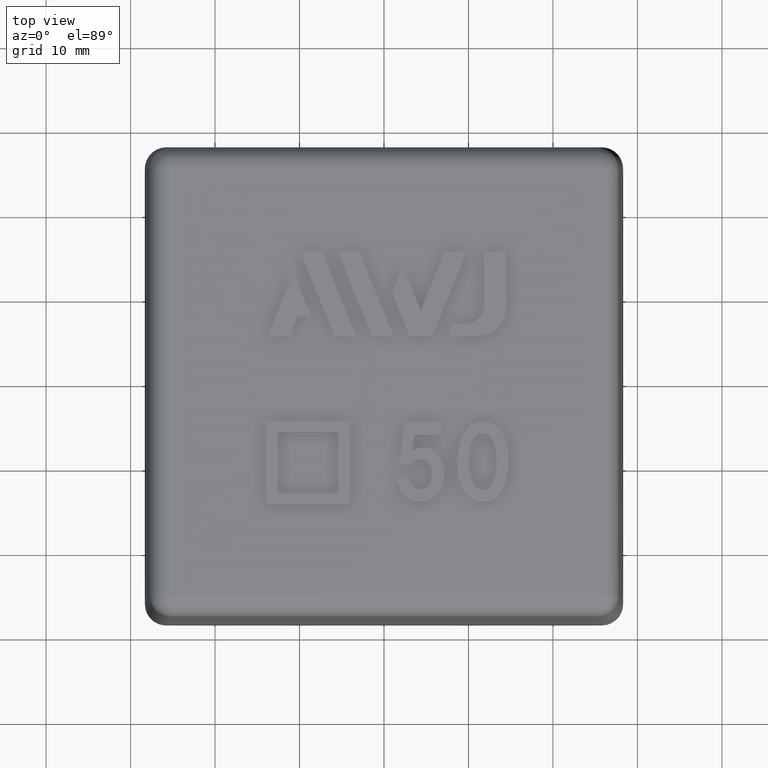
[diagram: clean part render]
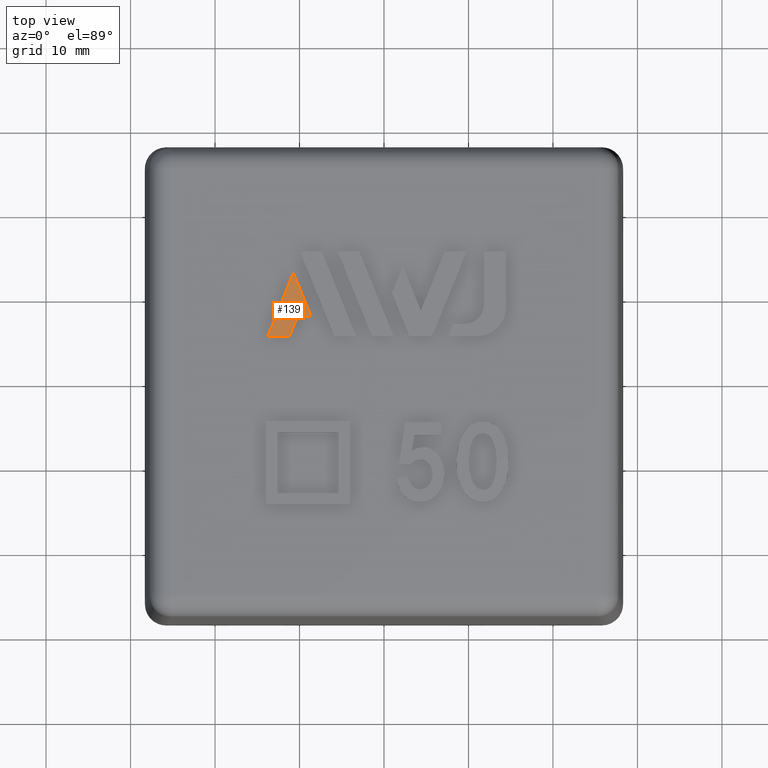
[diagram: same view with one face highlighted and labeled with its STEP entity id]
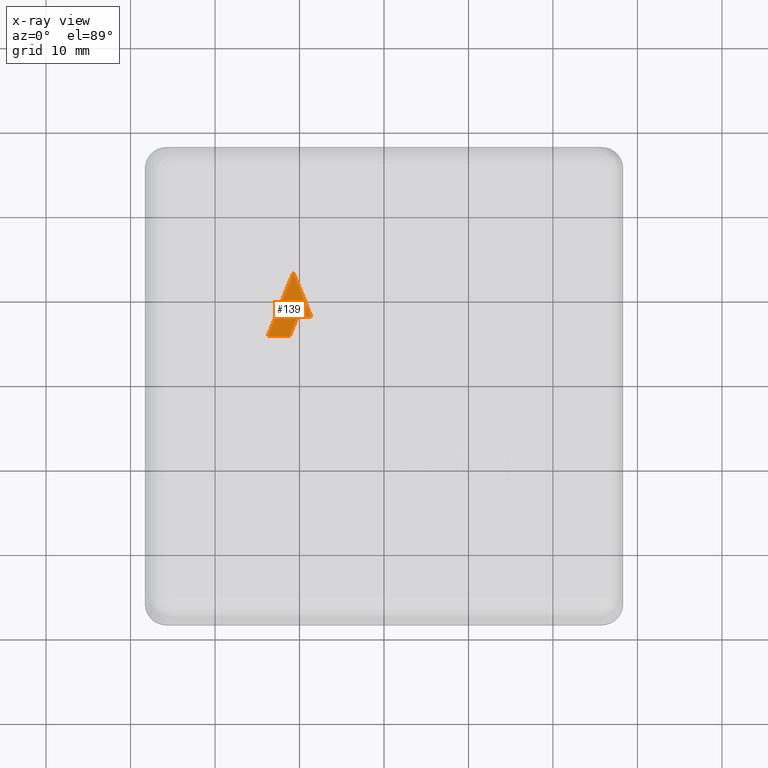
[diagram: x-ray of the same camera — body ghosted, the highlighted face saturated]
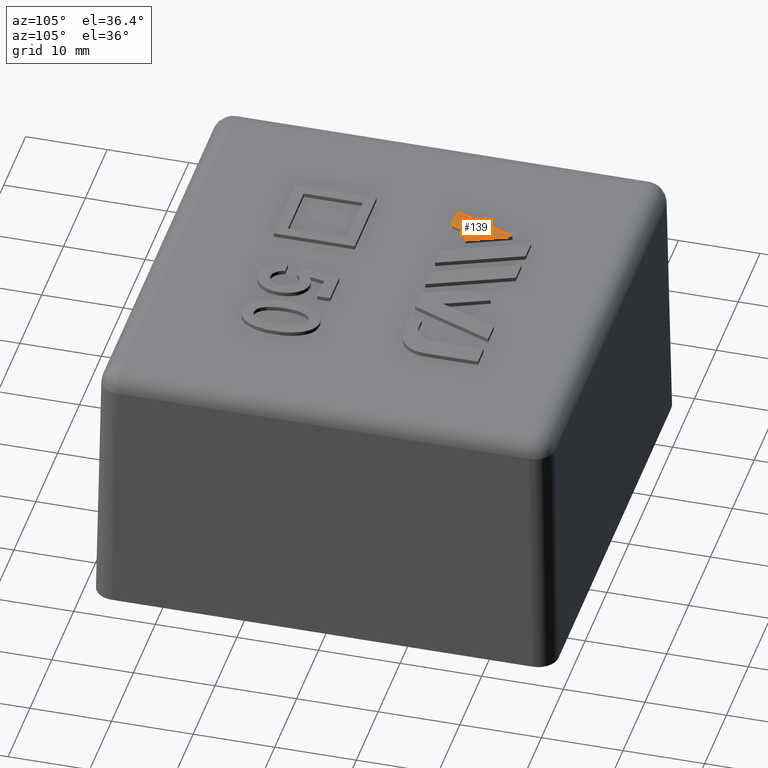
[diagram: same view with one face highlighted and labeled with its STEP entity id]
A machine part, top view. The second image highlights one B-rep face of the part: STEP entity #139.
The next image is the same camera in x-ray: the body ghosted, the highlighted face saturated — about 0% of this face is hidden behind the body in this view.
A second angle (auxiliary view) of the same face is appended — the face is thin or edge-on in the first view.
In plain terms, the highlighted planar face has unit normal (0, -0, -1).
Its self-contained STEP definition (entity closure, byte-faithful):
#139 = ADVANCED_FACE( '', ( #298 ), #299, .F. );
#298 = FACE_OUTER_BOUND( '', #478, .T. );
#299 = PLANE( '', #479 );
#478 = EDGE_LOOP( '', ( #1067, #1068, #1069, #1070, #1071 ) );
#479 = AXIS2_PLACEMENT_3D( '', #1072, #1073, #1074 );
#1067 = ORIENTED_EDGE( '', *, *, #1337, .T. );
#1068 = ORIENTED_EDGE( '', *, *, #1338, .T. );
#1069 = ORIENTED_EDGE( '', *, *, #1330, .T. );
#1070 = ORIENTED_EDGE( '', *, *, #1333, .T. );
#1071 = ORIENTED_EDGE( '', *, *, #1335, .T. );
#1072 = CARTESIAN_POINT( '', ( -8.63599113972252, 7.67713614476000, 32.9995000000000 ) );
#1073 = DIRECTION( '', ( 3.23117426778526E-033, -6.12303176911189E-017, -1.00000000000000 ) );
#1074 = DIRECTION( '', ( -0.374565060835224, -0.927200633736574, 5.67727893670972E-017 ) );
#1330 = EDGE_CURVE( '', #1626, #1624, #1627, .T. );
#1333 = EDGE_CURVE( '', #1624, #1629, #1631, .T. );
#1335 = EDGE_CURVE( '', #1629, #1632, #1634, .T. );
#1337 = EDGE_CURVE( '', #1632, #1635, #1637, .T. );
#1338 = EDGE_CURVE( '', #1635, #1626, #1638, .T. );
#1624 = VERTEX_POINT( '', #2188 );
#1626 = VERTEX_POINT( '', #2191 );
#1627 = LINE( '', #2192, #2193 );
#1629 = VERTEX_POINT( '', #2196 );
#1631 = LINE( '', #2199, #2200 );
#1632 = VERTEX_POINT( '', #2201 );
#1634 = LINE( '', #2204, #2205 );
#1635 = VERTEX_POINT( '', #2206 );
#1637 = LINE( '', #2209, #2210 );
#1638 = LINE( '', #2211, #2212 );
#2188 = CARTESIAN_POINT( '', ( -11.1774151033325, 5.36689874999999, 32.9995000000000 ) );
#2191 = CARTESIAN_POINT( '', ( -13.7614227298000, 5.36689874999999, 32.9995000000000 ) );
#2192 = CARTESIAN_POINT( '', ( -13.7614227298000, 5.36689874999999, 32.9995000000000 ) );
#2193 = VECTOR( '', #2456, 1000.00000000000 );
#2196 = CARTESIAN_POINT( '', ( -10.2433395056025, 7.67713614476000, 32.9995000000000 ) );
#2199 = CARTESIAN_POINT( '', ( -11.1774151033325, 5.36689874999999, 32.9995000000000 ) );
#2200 = VECTOR( '', #2459, 1000.00000000000 );
#2201 = CARTESIAN_POINT( '', ( -8.63599113972252, 7.67713614476000, 32.9995000000000 ) );
#2204 = CARTESIAN_POINT( '', ( -10.2433395056025, 7.67713614476000, 32.9995000000000 ) );
#2205 = VECTOR( '', #2461, 1000.00000000000 );
#2206 = CARTESIAN_POINT( '', ( -10.7317197420200, 12.8666439852850, 32.9995000000000 ) );
#2209 = CARTESIAN_POINT( '', ( -8.63599113972252, 7.67713614476000, 32.9995000000000 ) );
#2210 = VECTOR( '', #2463, 1000.00000000000 );
#2211 = CARTESIAN_POINT( '', ( -10.7317197420200, 12.8666439852850, 32.9995000000000 ) );
#2212 = VECTOR( '', #2464, 1000.00000000000 );
#2456 = DIRECTION( '', ( 1.00000000000000, -5.55111512312578E-017, 0.000000000000000 ) );
#2459 = DIRECTION( '', ( 0.374840859640758, 0.927089170438194, -5.67659644339264E-017 ) );
#2461 = DIRECTION( '', ( 1.00000000000000, 0.000000000000000, 0.000000000000000 ) );
#2463 = DIRECTION( '', ( -0.374457798873769, 0.927243957576760, -5.67754420995953E-017 ) );
#2464 = DIRECTION( '', ( -0.374565060835224, -0.927200633736574, 5.67727893670972E-017 ) );